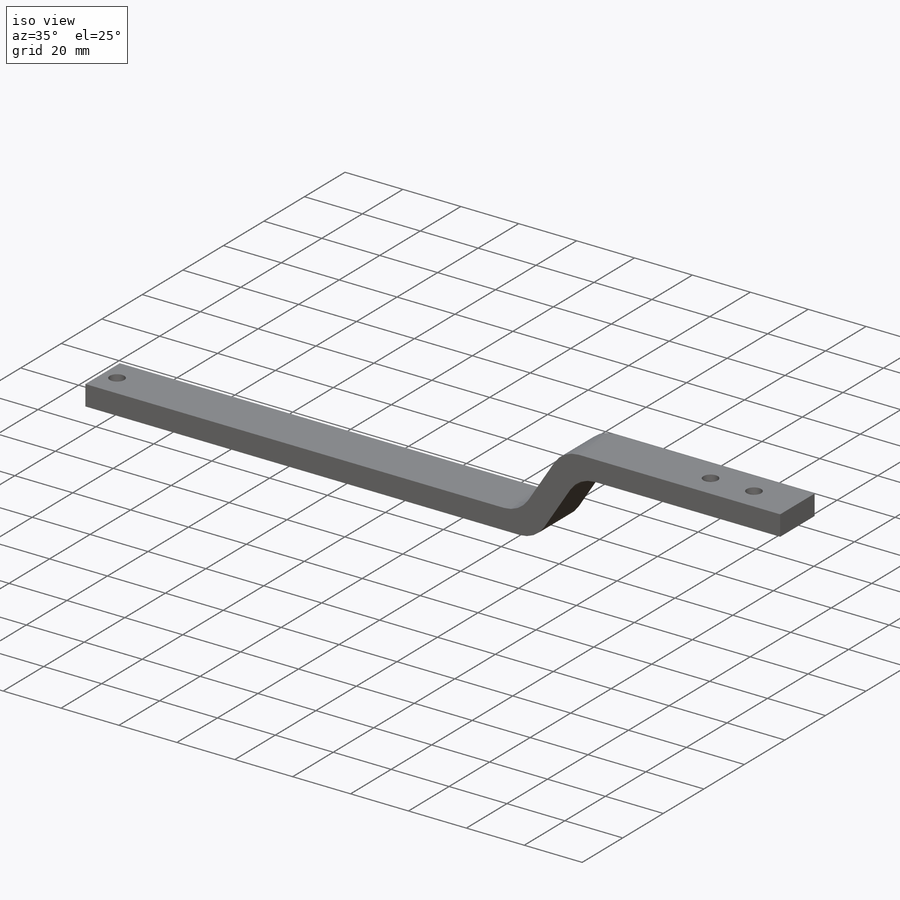
[diagram: iso view]
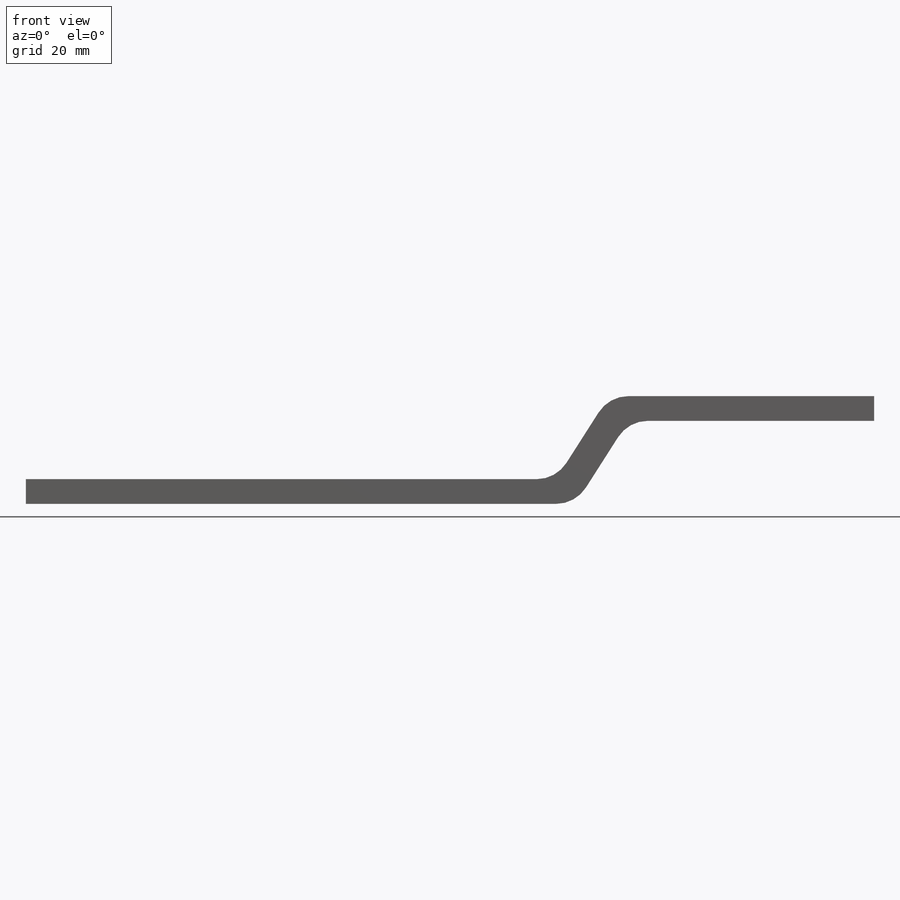
[diagram: front view]
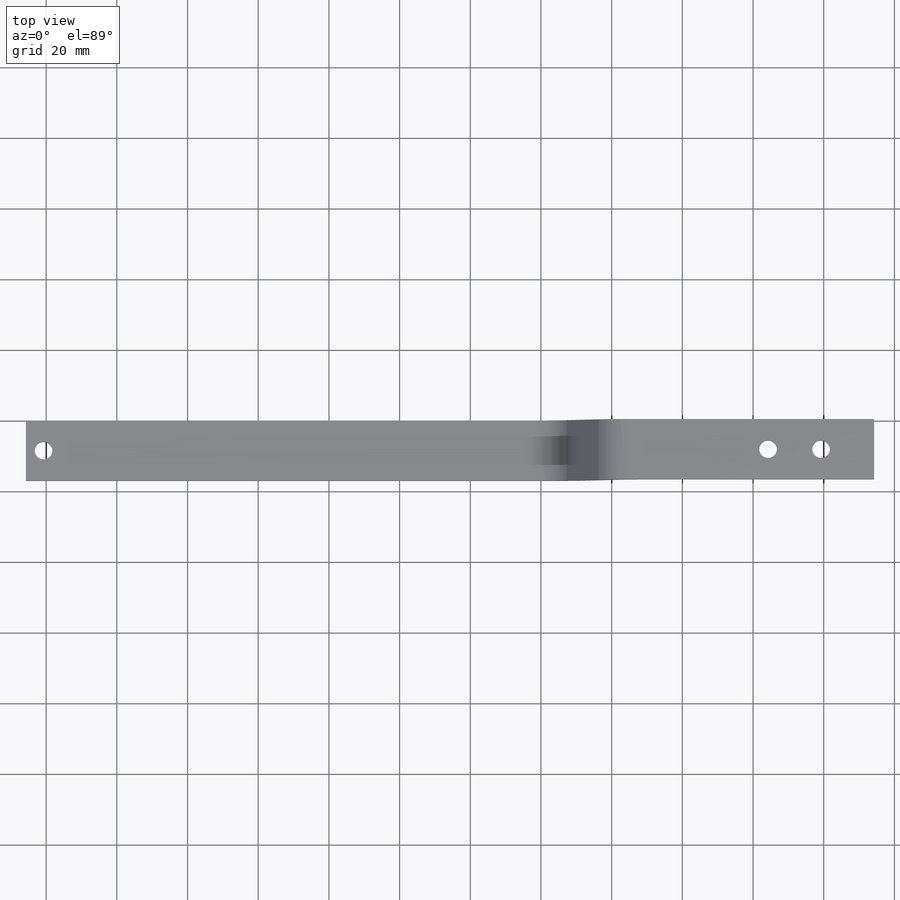
[diagram: top view]
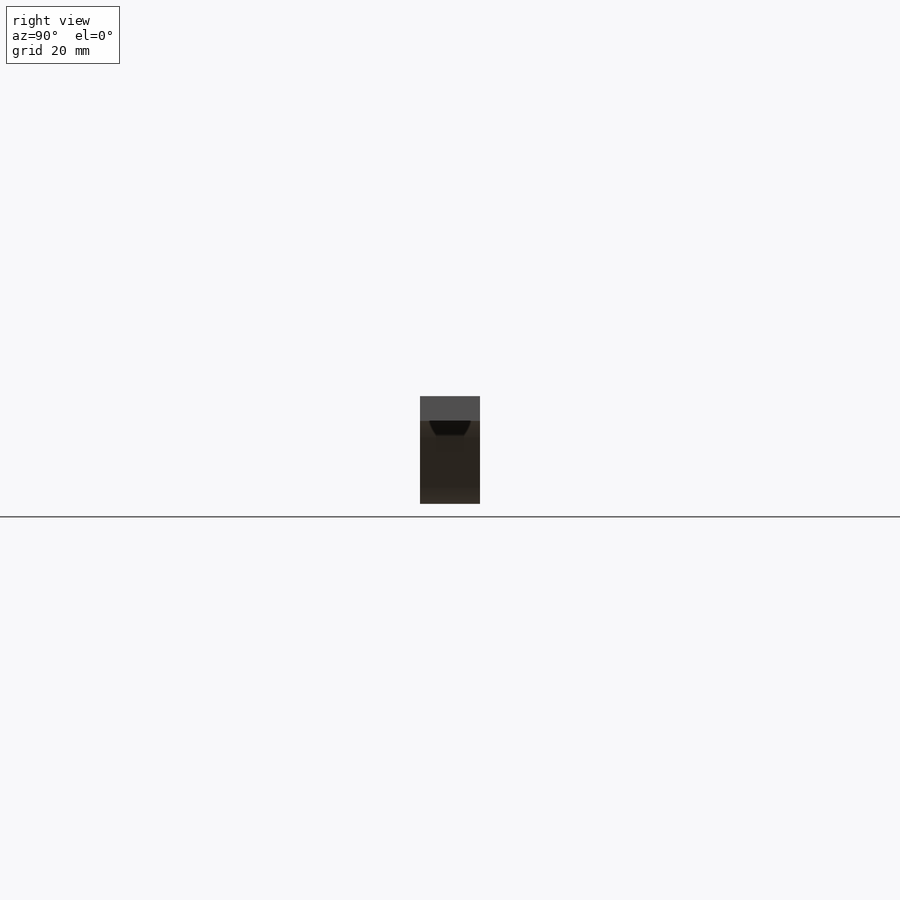
[diagram: right view]
SOLIDWORKS PART (.sldprt)
format: sldprt  version: not decoded by parser v0  size: 161,792 bytes
history: native  units: mm
features: sketch x3, cut_extrude x2, material x1, extrude x1, fillet x1 (+14 scaffold rows collapsed)
feature tree (22):
  scaffold x14  (default folders/planes/origin — collapsed)
  material  "Material <not specified>"
  sketch  "Sketch1"  dims[c1.D1=150.0mm c1.D2=20.0mm c1.D3=23.5mm c1.D4=75.0mm c1.D5=7.0mm c1.D6=7.0mm c1.D7=20.0mm c1.D8=~13.228757mm c2.D2=15.0mm]
  extrude  "Extrude1"  Depth=17mm
  fillet  "Fillet1"  Radius=10mm
  sketch  "Sketch2"  dims[D1=5.0mm D2=5.0mm D3=15.0mm D4=15.0mm]
  cut_extrude  "Extrude2"  Depth=17mm
  sketch  "Sketch3"  dims[D1=5.0mm D2=8.5mm D3=5.0mm]
  cut_extrude  "Extrude3"  Depth=17mm
decode coverage: 7 of 7 modeling features carry decoded parameters
note: ~ marks probable driven/reference dimensions
note: suppression state not decoded; provenance and decode notes live in map.json
